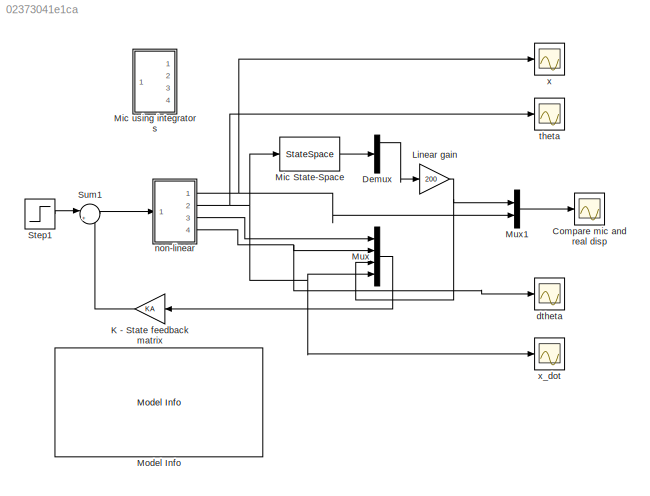
MODEL slx_02373041e1ca
KIND model
CONFIG AbsTol = auto
CONFIG FixedStep = auto
CONFIG MaxStep = auto
CONFIG MinStep = auto
CONFIG RelTol = 1e-3
CONFIG SampleTimeConstraint = Unconstrained
CONFIG Solver = ode45
CONFIG SolverMode = Auto
CONFIG SolverName = ode45
CONFIG StartTime = 0.0
CONFIG StopTime = 10.0
BLOCK [Scope] Compare mic and real disp
  Floating = off
  LegendLocations = 0.90038     0.90498    0.061129    0.042784
  LimitDataPoints = off
  NumInputPorts = 1
  Ports = [1]
  SaveName = ScopeData1
  ShowLegends = on
  YMax = 0.13
  YMin = -0.01
BLOCK [Demux] Demux
  DisplayOption = bar
  Ports = [1, 4]
BLOCK [Gain] K - State feedback matrix
  Gain = KA
  Multiplication = Matrix(K*u)
  OutDataTypeStr = Inherit: Inherit via internal rule
  ParamDataTypeStr = Inherit: Inherit via internal rule
  SaturateOnIntegerOverflow = off
BLOCK [Gain] Linear gain
  Gain = 200
  OutDataTypeStr = Inherit: Inherit via internal rule
  ParamDataTypeStr = Inherit: Inherit via internal rule
  SaturateOnIntegerOverflow = off
BLOCK [StateSpace] Mic State-Space
  A = A_
  B = B_
  C = eye(4)
  D = [0;0;0;0]
  Ports = [1, 1]
  X0 = 0
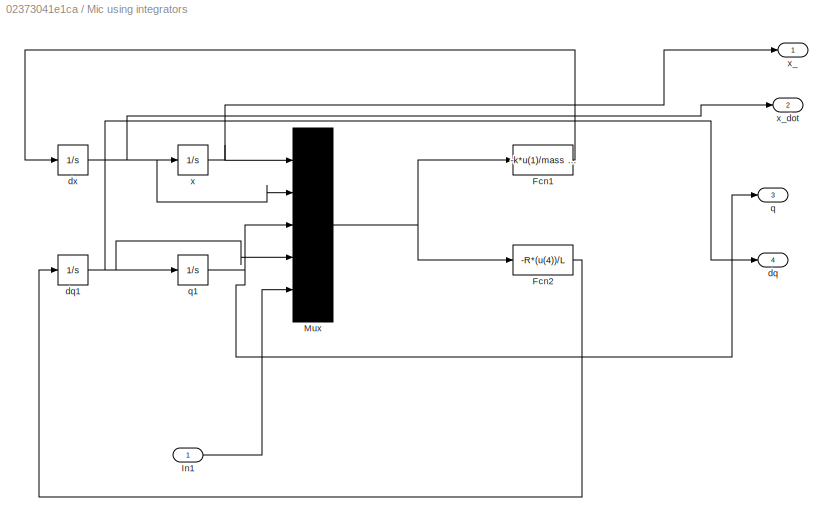
BLOCK [SubSystem] Mic using integrators
  Ports = [1, 4]
  RequestExecContextInheritance = off
BLOCK [Fcn] Mic using integrators/Fcn1
  Expr = -k*u(1)/mass -(damper*u(2))/mass +(u(3))*((sqrt(ep*2*a*k))/ep*a*mass)+ u(5)/mass
BLOCK [Fcn] Mic using integrators/Fcn2
  Expr = -R*(u(4))/L
BLOCK [Inport] Mic using integrators/In1
  IconDisplay = Port number
BLOCK [Mux] Mic using integrators/Mux
  DisplayOption = bar
  Inputs = 5
  Ports = [5, 1]
BLOCK [Outport] Mic using integrators/dq
  IconDisplay = Port number
  Port = 4
BLOCK [Integrator] Mic using integrators/dq1
  Ports = [1, 1]
BLOCK [Integrator] Mic using integrators/dx
  Ports = [1, 1]
BLOCK [Outport] Mic using integrators/q
  IconDisplay = Port number
  Port = 3
BLOCK [Integrator] Mic using integrators/q1
  InitialCondition = 0.01
  LowerSaturationLimit = -3.14
  Ports = [1, 1]
  UpperSaturationLimit = 3.14
BLOCK [Integrator] Mic using integrators/x
  Ports = [1, 1]
BLOCK [Outport] Mic using integrators/x_
  IconDisplay = Port number
BLOCK [Outport] Mic using integrators/x_dot
  IconDisplay = Port number
  Port = 2
BLOCK [Reference] Model Info  REF=simulink/Model-Wide
Utilities/Model Info
  DisplayStringWithTags = State feedback matrix info:\nReplace the feedback block to test others\nGain block\nKA- pole placement (repeated)\nKB - pole placement (non-repeated)\nK1 - LQR 1 \nK2 - LQR 2\nK3 - LQR 3\nK4 - LQR 4
  Frame = on
  HorizontalTextAlignment = Center
  LeftAlignmentValue = 0.5
  MaskDisplayString = State feedback matrix info:\nReplace the feedback block to test others\nGain block\nKA- pole placement (repeated)\nKB - pole placement (non-repeated)\nK1 - LQR 1 \nK2 - LQR 2\nK3 - LQR 3\nK4 - LQR 4
  Ports = []
  SourceBlock = simulink/Model-Wide\nUtilities/Model Info
  SourceBlockDiagram = single_pend_non_linear
  SourceType = CMBlock
  TagMaxNumber = 20
BLOCK [Mux] Mux
  DisplayOption = bar
  Ports = [4, 1]
BLOCK [Mux] Mux1
  DisplayOption = bar
  Inputs = 2
  Ports = [2, 1]
BLOCK [Step] Step1
  SampleTime = 0
BLOCK [Sum] Sum1
  IconShape = round
  InputSameDT = off
  Inputs = |+-
  OutDataTypeStr = Inherit: Inherit via internal rule
  Ports = [2, 1]
  SaturateOnIntegerOverflow = off
BLOCK [Scope] dtheta
  Floating = off
  LimitDataPoints = off
  NumInputPorts = 1
  Ports = [1]
  SaveName = dtheta
  SaveToWorkspace = on
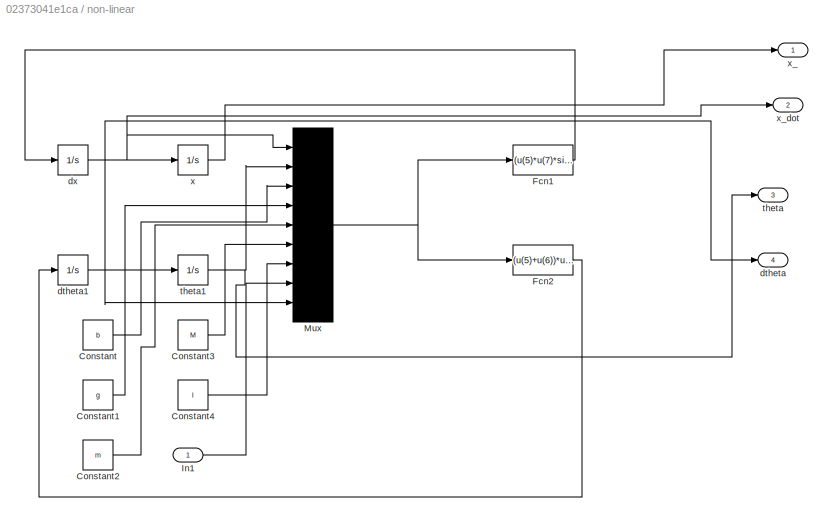
BLOCK [SubSystem] non-linear
  Ports = [1, 4]
  RequestExecContextInheritance = off
BLOCK [Constant] non-linear/Constant
  Value = b
BLOCK [Constant] non-linear/Constant1
  Value = g
BLOCK [Constant] non-linear/Constant2
  Value = m
BLOCK [Constant] non-linear/Constant3
  Value = M
BLOCK [Constant] non-linear/Constant4
  Value = l
BLOCK [Fcn] non-linear/Fcn1
  Expr = (u(5)*u(7)*sin(u(2))*u(9)^2-u(5)*u(4)*cos(u(2))*sin(u(2))-u(3)*u(1))/(u(6)+u(5)*sin(u(2))*sin(u(2))) + u(8)/(u(6)+u(5)*sin(u(2))*sin(u(2)))
BLOCK [Fcn] non-linear/Fcn2
  Expr = (u(5)+u(6))*u(4)*sin(u(2))+u(3)*cos(u(2))*u(1)-u(5)*u(7)*cos(u(2))*sin(u(2))*u(9)^2/u(7)*(u(6)+u(5)*sin(u(2))*sin(u(2))) - u(8)*cos(u(2))/u(7)*(u(6)+u(5)*sin(u(2))*sin(u(2)))
BLOCK [Inport] non-linear/In1
  IconDisplay = Port number
BLOCK [Mux] non-linear/Mux
  DisplayOption = bar
  Inputs = 9
  Ports = [9, 1]
BLOCK [Outport] non-linear/dtheta
  IconDisplay = Port number
  Port = 4
BLOCK [Integrator] non-linear/dtheta1
  Ports = [1, 1]
BLOCK [Integrator] non-linear/dx
  Ports = [1, 1]
BLOCK [Outport] non-linear/theta
  IconDisplay = Port number
  Port = 3
BLOCK [Integrator] non-linear/theta1
  InitialCondition = 0.01
  LowerSaturationLimit = -3.14
  Ports = [1, 1]
  UpperSaturationLimit = 3.14
BLOCK [Integrator] non-linear/x
  Ports = [1, 1]
BLOCK [Outport] non-linear/x_
  IconDisplay = Port number
BLOCK [Outport] non-linear/x_dot
  IconDisplay = Port number
  Port = 2
BLOCK [Scope] theta
  Floating = off
  LimitDataPoints = off
  NumInputPorts = 1
  Ports = [1]
  SaveName = theta
  SaveToWorkspace = on
  ShowLegends = on
BLOCK [Scope] x
  Floating = off
  LegendLocations = 0.92561     0.92337    0.051202    0.024399
  LimitDataPoints = off
  NumInputPorts = 1
  Ports = [1]
  SaveName = x
  SaveToWorkspace = on
  ShowLegends = on
BLOCK [Scope] x_dot
  Floating = off
  LegendLocations = 0.90038     0.92337    0.061129    0.024399
  LimitDataPoints = off
  NumInputPorts = 1
  Ports = [1]
  SaveName = xdot
  SaveToWorkspace = on
  ShowLegends = on
  YMax = -0.10395
  YMin = -0.1044
LINE Demux:1 -> Linear gain:1
LINE K - State feedback matrix:1 -> Sum1:2
NET Linear gain:1 -> Mux1:1, Mux:3
LINE Mic State-Space:1 -> Demux:1
LINE Mic using integrators/Fcn1:1 -> Mic using integrators/dx:1
LINE Mic using integrators/Fcn2:1 -> Mic using integrators/dq1:1
LINE Mic using integrators/In1:1 -> Mic using integrators/Mux:5
NET Mic using integrators/Mux:1 -> Mic using integrators/Fcn1:1, Mic using integrators/Fcn2:1
NET Mic using integrators/dq1:1 -> Mic using integrators/Mux:4, Mic using integrators/dq:1, Mic using integrators/q1:1
NET Mic using integrators/dx:1 -> Mic using integrators/Mux:2, Mic using integrators/x:1, Mic using integrators/x_dot:1
NET Mic using integrators/q1:1 -> Mic using integrators/Mux:3, Mic using integrators/q:1
NET Mic using integrators/x:1 -> Mic using integrators/Mux:1, Mic using integrators/x_:1
LINE Mux1:1 -> Compare mic and real disp:1
LINE Mux:1 -> K - State feedback matrix:1
LINE Step1:1 -> Sum1:1
LINE Sum1:1 -> non-linear:1
LINE non-linear/Constant1:1 -> non-linear/Mux:4
LINE non-linear/Constant2:1 -> non-linear/Mux:5
LINE non-linear/Constant3:1 -> non-linear/Mux:6
LINE non-linear/Constant4:1 -> non-linear/Mux:7
LINE non-linear/Constant:1 -> non-linear/Mux:3
LINE non-linear/Fcn1:1 -> non-linear/dx:1
LINE non-linear/Fcn2:1 -> non-linear/dtheta1:1
LINE non-linear/In1:1 -> non-linear/Mux:8
NET non-linear/Mux:1 -> non-linear/Fcn1:1, non-linear/Fcn2:1
NET non-linear/dtheta1:1 -> non-linear/Mux:9, non-linear/dtheta:1, non-linear/theta1:1
NET non-linear/dx:1 -> non-linear/Mux:1, non-linear/x:1, non-linear/x_dot:1
NET non-linear/theta1:1 -> non-linear/Mux:2, non-linear/theta:1
LINE non-linear/x:1 -> non-linear/x_:1
NET non-linear:1 -> Mux1:2, x:1
NET non-linear:2 -> Mic State-Space:1, Mux:4, theta:1, x_dot:1
LINE non-linear:3 -> Mux:1
NET non-linear:4 -> Mux:2, dtheta:1
note: NET lines group one-source signal fan-out (src -> all destinations, sorted); 1:1 wires keep LINE
